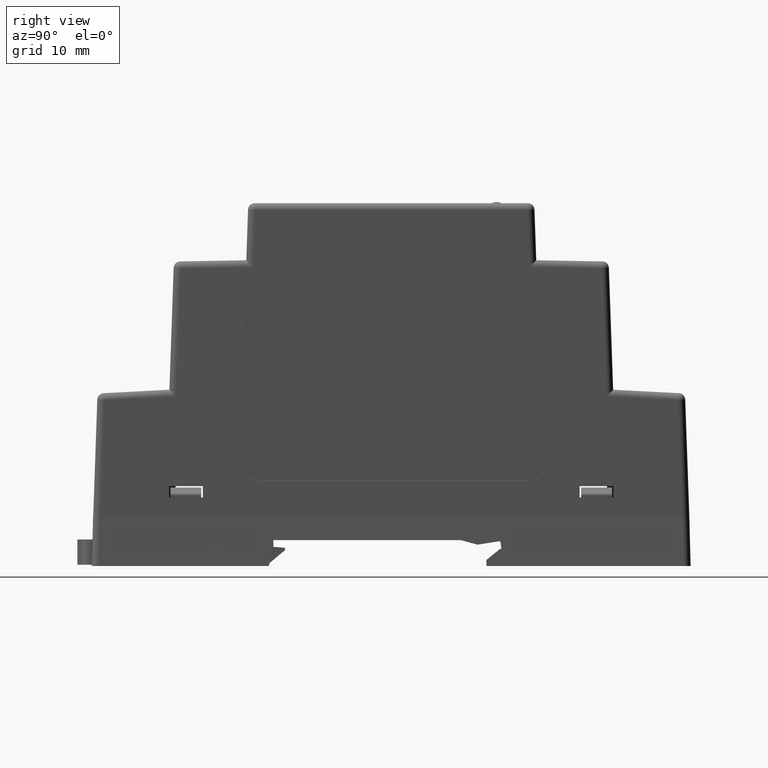
[diagram: clean part render]
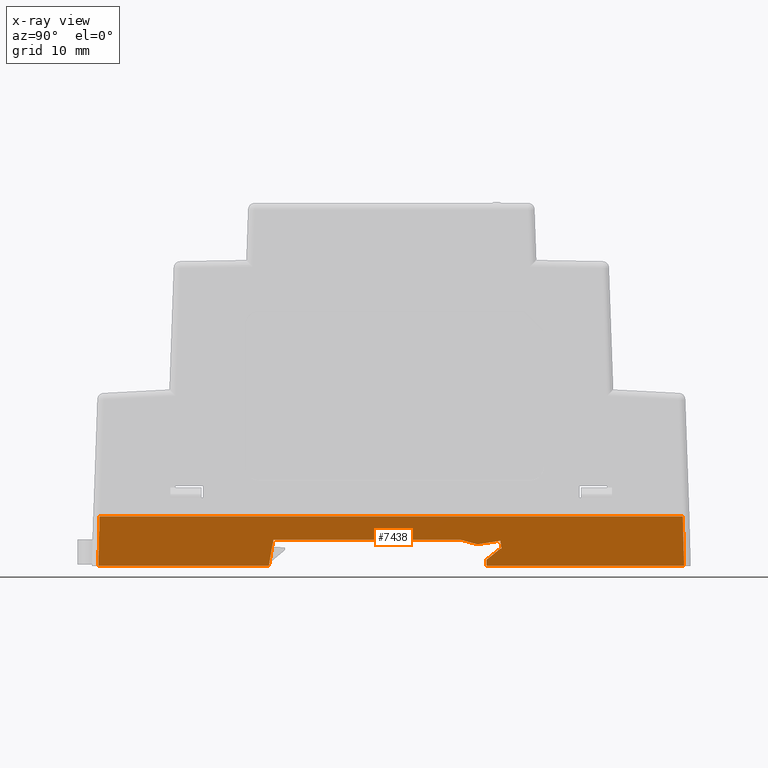
[diagram: x-ray — body ghosted, one internal face saturated and labeled with its STEP entity id]
A machine part, right view, then the same camera in x-ray: the body is ghosted and one INTERNAL B-rep face — a face not visible from any outside direction — is saturated and labeled: STEP entity #7438.
In plain terms, the highlighted planar face has unit normal (-0.9997, 0, 0.0262).
Its self-contained STEP definition (entity closure, byte-faithful):
#4250=CARTESIAN_POINT('',(-12.250000292130000,45.001132675030007,-3.019807E-014));
#4251=VERTEX_POINT('',#4250);
#4259=CARTESIAN_POINT('',(-12.250000292134402,-45.001132675026511,-5.329071E-015));
#4260=VERTEX_POINT('',#4259);
#4261=CARTESIAN_POINT('',(-12.250000292130000,45.001132675030007,-3.019807E-014));
#4262=DIRECTION('',(0.0,-1.0,0.0));
#4263=VECTOR('',#4262,90.002265350056518);
#4264=LINE('',#4261,#4263);
#4265=EDGE_CURVE('',#4251,#4260,#4264,.T.);
#6929=CARTESIAN_POINT('',(-12.449013304768201,-45.200145687693009,-7.600000321396712));
#6930=VERTEX_POINT('',#6929);
#6931=CARTESIAN_POINT('',(-12.449013304768201,-45.200145687693009,-7.600000321396712));
#6932=DIRECTION('',(0.026167984303307,0.026167984307606,0.999315001986250));
#6933=VECTOR('',#6932,7.605209875055273);
#6934=LINE('',#6931,#6933);
#6935=EDGE_CURVE('',#6930,#4260,#6934,.T.);
#6953=CARTESIAN_POINT('',(-12.449013304759999,-18.885819338950000,-7.600000321397000));
#6954=VERTEX_POINT('',#6953);
#6955=CARTESIAN_POINT('',(-12.449013304768201,-45.200145687693009,-7.600000321396712));
#6956=DIRECTION('',(3.117395E-013,1.0,-1.107087E-014));
#6957=VECTOR('',#6956,26.314326348743009);
#6958=LINE('',#6955,#6957);
#6959=EDGE_CURVE('',#6930,#6954,#6958,.T.);
#7329=CARTESIAN_POINT('',(-12.449013304759999,45.200145687689989,-7.600000321397000));
#7330=VERTEX_POINT('',#7329);
#7331=CARTESIAN_POINT('',(-12.449013304759999,45.200145687689989,-7.600000321397000));
#7332=DIRECTION('',(0.026167984302807,-0.026167984306751,0.999315001986285));
#7333=VECTOR('',#7332,7.605209875055266);
#7334=LINE('',#7331,#7333);
#7335=EDGE_CURVE('',#7330,#4251,#7334,.T.);
#7349=CARTESIAN_POINT('',(-12.453788712830001,6.437084555966002,-7.782365797671000));
#7350=DIRECTION('',(-0.999657324974553,0.0,0.026176948346229));
#7351=DIRECTION('',(0.026176948346229,0.0,0.999657324974553));
#7352=AXIS2_PLACEMENT_3D('',#7349,#7350,#7351);
#7353=PLANE('',#7352);
#7354=ORIENTED_EDGE('',*,*,#7335,.F.);
#7355=CARTESIAN_POINT('',(-12.449013304662026,14.740671999300011,-7.600000320931697));
#7356=VERTEX_POINT('',#7355);
#7357=CARTESIAN_POINT('',(-12.449013304764353,14.740671999300011,-7.600000321397000));
#7358=DIRECTION('',(0.0,1.0,0.0));
#7359=VECTOR('',#7358,30.459473688389977);
#7360=LINE('',#7357,#7359);
#7361=EDGE_CURVE('',#7356,#7330,#7360,.T.);
#7362=ORIENTED_EDGE('',*,*,#7361,.F.);
#7363=CARTESIAN_POINT('',(-12.446394710602089,14.697601686876018,-7.500000242980201));
#7364=VERTEX_POINT('',#7363);
#7365=CARTESIAN_POINT('',(-12.446394710546324,14.697601687221983,-7.500000242832648));
#7366=DIRECTION('',(-0.024043108992862,0.395458073439242,-0.918169287801373));
#7367=VECTOR('',#7366,0.108912462268819);
#7368=LINE('',#7365,#7367);
#7369=EDGE_CURVE('',#7364,#7356,#7368,.T.);
#7370=ORIENTED_EDGE('',*,*,#7369,.F.);
#7371=CARTESIAN_POINT('',(-12.425665790620002,14.697601686499997,-6.708394729307000));
#7372=VERTEX_POINT('',#7371);
#7373=CARTESIAN_POINT('',(-12.425665790625008,14.697601686499997,-6.708394729306868));
#7374=DIRECTION('',(-0.026176948346229,0.0,-0.999657324974553));
#7375=VECTOR('',#7374,0.791876870101304);
#7376=LINE('',#7373,#7375);
#7377=EDGE_CURVE('',#7372,#7364,#7376,.T.);
#7378=ORIENTED_EDGE('',*,*,#7377,.F.);
#7379=CARTESIAN_POINT('',(-12.380533686970001,16.820751549950007,-4.984869228487002));
#7380=VERTEX_POINT('',#7379);
#7381=CARTESIAN_POINT('',(-12.380533686970001,16.820751549950007,-4.984869228487002));
#7382=DIRECTION('',(-0.016501553741177,-0.776282706518425,-0.630168912502478));
#7383=VECTOR('',#7382,2.735021462699058);
#7384=LINE('',#7381,#7383);
#7385=EDGE_CURVE('',#7380,#7372,#7384,.T.);
#7386=ORIENTED_EDGE('',*,*,#7385,.F.);
#7387=CARTESIAN_POINT('',(-12.380533686970001,17.020751549939995,-4.984869228487002));
#7388=VERTEX_POINT('',#7387);
#7389=CARTESIAN_POINT('',(-12.380533686970001,17.020751549939995,-4.984869228487002));
#7390=DIRECTION('',(0.0,-1.0,0.0));
#7391=VECTOR('',#7390,0.199999999989988);
#7392=LINE('',#7389,#7391);
#7393=EDGE_CURVE('',#7388,#7380,#7392,.T.);
#7394=ORIENTED_EDGE('',*,*,#7393,.F.);
#7395=CARTESIAN_POINT('',(-12.348154379750000,16.820751549940002,-3.748353374365002));
#7396=VERTEX_POINT('',#7395);
#7397=CARTESIAN_POINT('',(-12.348154379750000,16.820751549940002,-3.748353374365002));
#7398=DIRECTION('',(-0.025841336838447,0.159616366482874,-0.986840838667111));
#7399=VECTOR('',#7398,1.253004340387975);
#7400=LINE('',#7397,#7399);
#7401=EDGE_CURVE('',#7396,#7388,#7400,.T.);
#7402=ORIENTED_EDGE('',*,*,#7401,.F.);
#7403=CARTESIAN_POINT('',(-12.362599761360000,13.320751549940004,-4.300000241157001));
#7404=VERTEX_POINT('',#7403);
#7405=CARTESIAN_POINT('',(-12.362599761360000,13.320751549940004,-4.300000241157001));
#7406=DIRECTION('',(0.004076889233260,0.987797532917119,0.155690118302456));
#7407=VECTOR('',#7406,3.543236223382697);
#7408=LINE('',#7405,#7407);
#7409=EDGE_CURVE('',#7404,#7396,#7408,.T.);
#7410=ORIENTED_EDGE('',*,*,#7409,.F.);
#7411=CARTESIAN_POINT('',(-12.344269616229999,10.720751550050004,-3.600000241188002));
#7412=VERTEX_POINT('',#7411);
#7413=CARTESIAN_POINT('',(-12.344269616229999,10.720751550050004,-3.600000241188002));
#7414=DIRECTION('',(-0.006807487256418,0.965593384035447,-0.259967449547491));
#7415=VECTOR('',#7414,2.692644795290514);
#7416=LINE('',#7413,#7415);
#7417=EDGE_CURVE('',#7412,#7404,#7416,.T.);
#7418=ORIENTED_EDGE('',*,*,#7417,.F.);
#7419=CARTESIAN_POINT('',(-12.344269616229999,-18.185819324920001,-3.600000241238000));
#7420=VERTEX_POINT('',#7419);
#7421=CARTESIAN_POINT('',(-12.344269616229999,10.720751550050004,-3.600000241188002));
#7422=DIRECTION('',(0.0,-1.0,-1.729680E-012));
#7423=VECTOR('',#7422,28.906570874970008);
#7424=LINE('',#7421,#7423);
#7425=EDGE_CURVE('',#7412,#7420,#7424,.T.);
#7426=ORIENTED_EDGE('',*,*,#7425,.T.);
#7427=CARTESIAN_POINT('',(-12.449013304759999,-18.885819338950000,-7.600000321397000));
#7428=DIRECTION('',(0.025785354176160,0.172323015719567,0.984702946965898));
#7429=VECTOR('',#7428,4.062138833324248);
#7430=LINE('',#7427,#7429);
#7431=EDGE_CURVE('',#6954,#7420,#7430,.T.);
#7432=ORIENTED_EDGE('',*,*,#7431,.F.);
#7433=ORIENTED_EDGE('',*,*,#6959,.F.);
#7434=ORIENTED_EDGE('',*,*,#6935,.T.);
#7435=ORIENTED_EDGE('',*,*,#4265,.F.);
#7436=EDGE_LOOP('',(#7354,#7362,#7370,#7378,#7386,#7394,#7402,#7410,#7418,#7426,#7432,#7433,#7434,#7435));
#7437=FACE_OUTER_BOUND('',#7436,.T.);
#7438=ADVANCED_FACE('',(#7437),#7353,.T.);